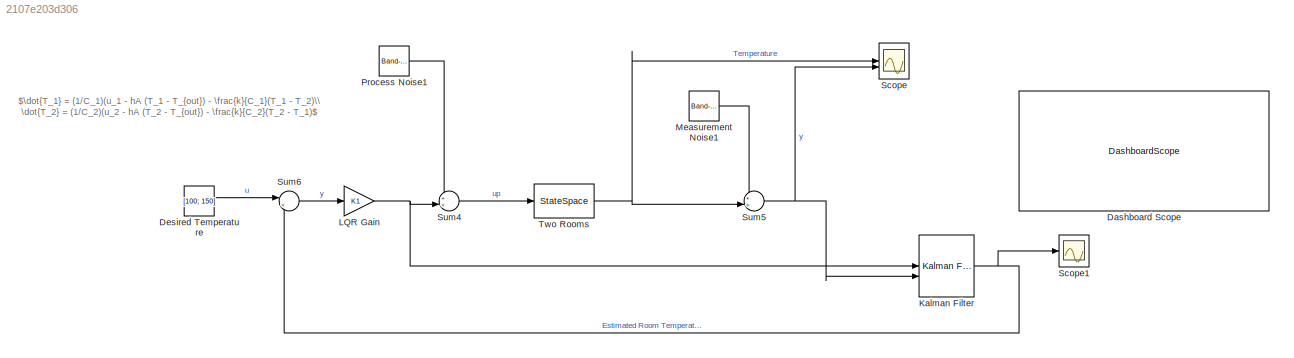
MODEL slx_2107e203d306
KIND model
CONFIG AbsTol = auto
CONFIG EnableMultiTasking = off
CONFIG FixedStep = auto
CONFIG MaxStep = auto
CONFIG MinStep = auto
CONFIG RelTol = 1e-3
CONFIG SampleTimeConstraint = Unconstrained
CONFIG SolverName = VariableStepAuto
CONFIG StartTime = 0.0
CONFIG StopTime = 3600.0
BLOCK [DashboardScope] Dashboard Scope
BLOCK [Constant] Desired Temperature
  Value = [100; 150]
BLOCK [Reference] Kalman Filter  REF=ctrlSharedLib/Kalman Filter
  LibrarySourceBlock = cstblocks/State Estimation/Kalman Filter
  NameLocation = top
  SourceBlock = ctrlSharedLib/Kalman Filter
  SourceType = ctrlKalmanFilter
BLOCK [Gain] LQR Gain
  Gain = K1
  Multiplication = Matrix(K*u)
BLOCK [Reference] Measurement Noise1  REF=simulink/Sources/Band-Limited
White Noise
  SourceBlock = simulink/Sources/Band-Limited\nWhite Noise
  SourceType = Band-Limited White Noise.
BLOCK [Reference] Process Noise1  REF=simulink/Sources/Band-Limited
White Noise
  SourceBlock = simulink/Sources/Band-Limited\nWhite Noise
  SourceType = Band-Limited White Noise.
BLOCK [Scope] Scope
  Floating = off
  NumInputPorts = 2
  ScopeSpecificationString = Simulink.scopes.TimeScopeBlockCfg('CurrentConfiguration', extmgr.ConfigurationSet(extmgr.Configuration('Core','General UI',true),extmgr.Configuration('Core','Source UI',true),extmgr.Configuration('Sources','WiredSimulink',true,'DataLoggingVariableName','ScopeData1'),extmgr.Configuration('Visuals','Time Domain',true,'SerializedDisplays',{struct('MinYLimReal','-7.77884','MaxYLimReal','266.96851','YL...<+1601ch>
BLOCK [Scope] Scope1
  Floating = off
  NumInputPorts = 1
  ScopeSpecificationString = Simulink.scopes.TimeScopeBlockCfg('CurrentConfiguration', extmgr.ConfigurationSet(extmgr.Configuration('Core','General UI',true),extmgr.Configuration('Core','Source UI',true),extmgr.Configuration('Sources','WiredSimulink',true,'DataLoggingVariableName','ScopeData1'),extmgr.Configuration('Visuals','Time Domain',true,'SerializedDisplays',{struct('MinYLimReal','3.87218','MaxYLimReal','165.15035','YLa...<+1453ch>
BLOCK [Sum] Sum4
  Inputs = ++|
BLOCK [Sum] Sum5
  Inputs = ++|
BLOCK [Sum] Sum6
  Inputs = |+-
BLOCK [StateSpace] Two Rooms
  A = A
  B = B
  C = C
  D = D
  InitialCondition = 20
ANNOTATION (root): $\dot{T_1} = (1/C_1)(u_1 - hA (T_1 - T_{out}) - \frac{k}{C_1}(T_1 - T_2)\\ \dot{T_2} = (1/C_2)(u_2 - hA (T_2 - T_{out}) - \frac{k}{C_2}(T_2 - T_1)$
LINE Desired Temperature:1 -> Sum6:1
NET Kalman Filter:1 -> Scope1:1, Sum6:2
NET LQR Gain:1 -> Kalman Filter:1, Sum4:2
LINE Measurement Noise1:1 -> Sum5:1
LINE Process Noise1:1 -> Sum4:1
LINE Sum4:1 -> Two Rooms:1
NET Sum5:1 -> Kalman Filter:2, Scope:2
LINE Sum6:1 -> LQR Gain:1
NET Two Rooms:1 -> Scope:1, Sum5:2
note: NET lines group one-source signal fan-out (src -> all destinations, sorted); 1:1 wires keep LINE
